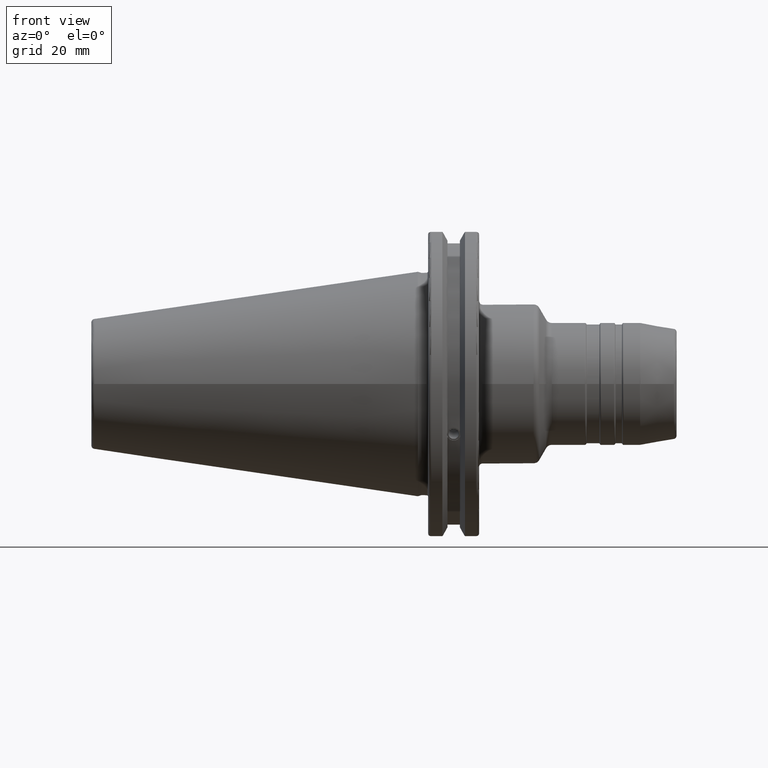
[diagram: clean part render]
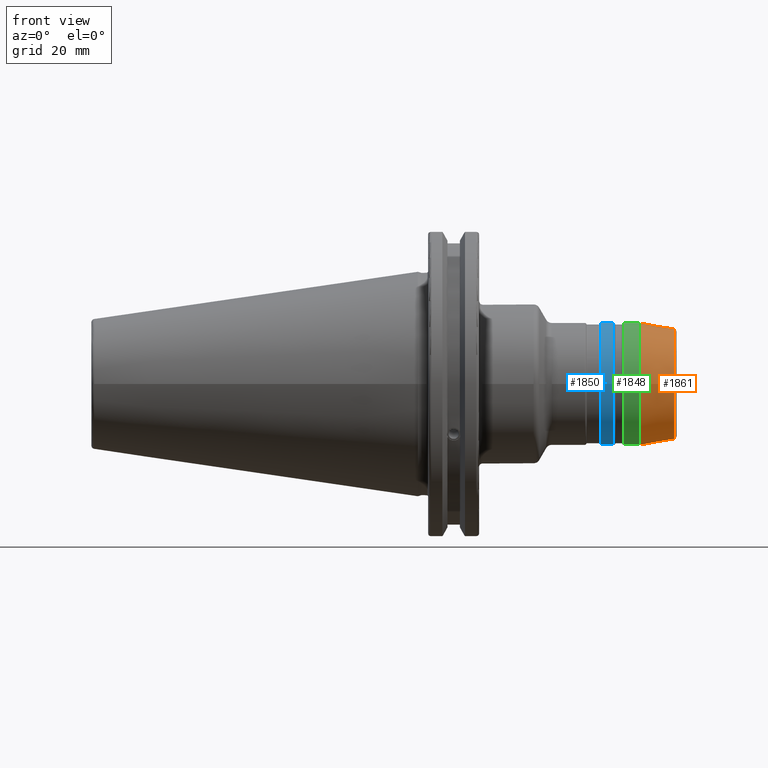
[diagram: same view with three faces highlighted in distinct colors, each labeled with its STEP entity id]
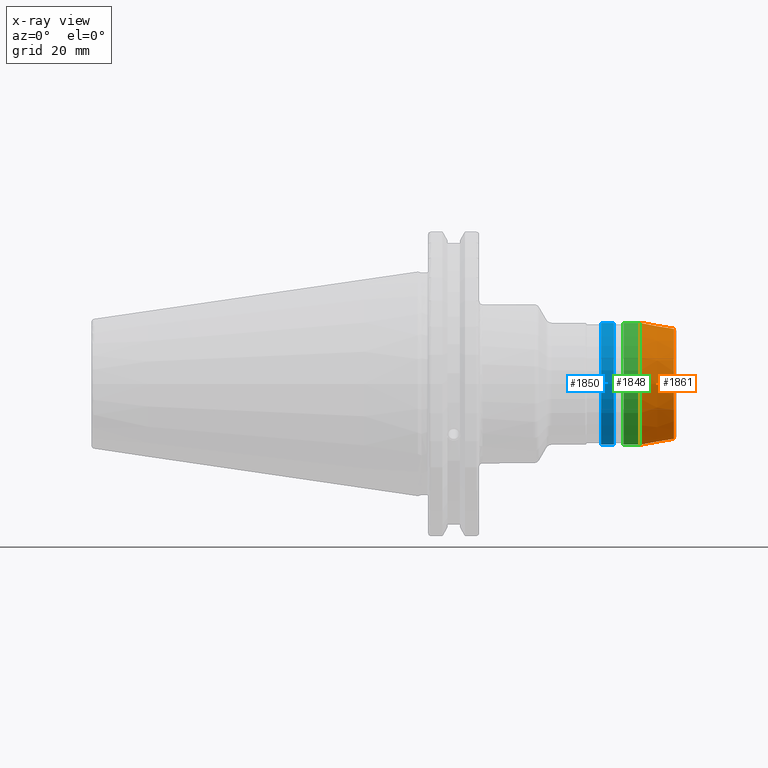
[diagram: x-ray of the same camera — body ghosted, the three highlighted faces saturated]
A machine part, front view with three faces highlighted in distinct colors.
The next image is the same camera in x-ray (body ghosted, the three faces saturated) — at least one of them is partly hidden behind the body in this view.
Their STEP definitions:

[orange] entity #1861 — the highlighted conical surface has half-angle 10 deg.
#154=CONICAL_SURFACE('',#2060,18.,0.174532925199432);
#195=FACE_OUTER_BOUND('',#306,.T.);
#306=EDGE_LOOP('',(#1397,#1398,#1399,#1400,#1401,#1402));
#428=LINE('',#3056,#532);
#532=VECTOR('',#2428,18.);
#675=CIRCLE('',#2057,18.9848077530122);
#676=CIRCLE('',#2058,18.9848077530122);
#678=CIRCLE('',#2061,17.1457081218349);
#679=CIRCLE('',#2062,17.1457081218349);
#807=VERTEX_POINT('',#3047);
#808=VERTEX_POINT('',#3048);
#809=VERTEX_POINT('',#3053);
#810=VERTEX_POINT('',#3054);
#1027=EDGE_CURVE('',#807,#808,#675,.T.);
#1028=EDGE_CURVE('',#808,#807,#676,.T.);
#1030=EDGE_CURVE('',#809,#810,#678,.T.);
#1031=EDGE_CURVE('',#809,#808,#428,.T.);
#1032=EDGE_CURVE('',#810,#809,#679,.T.);
#1397=ORIENTED_EDGE('',*,*,#1030,.F.);
#1398=ORIENTED_EDGE('',*,*,#1031,.T.);
#1399=ORIENTED_EDGE('',*,*,#1027,.F.);
#1400=ORIENTED_EDGE('',*,*,#1028,.F.);
#1401=ORIENTED_EDGE('',*,*,#1031,.F.);
#1402=ORIENTED_EDGE('',*,*,#1032,.F.);
#1861=ADVANCED_FACE('',(#195),#154,.T.);
#2057=AXIS2_PLACEMENT_3D('',#3049,#2418,#2419);
#2058=AXIS2_PLACEMENT_3D('',#3050,#2420,#2421);
#2060=AXIS2_PLACEMENT_3D('',#3052,#2424,#2425);
#2061=AXIS2_PLACEMENT_3D('',#3055,#2426,#2427);
#2062=AXIS2_PLACEMENT_3D('',#3057,#2429,#2430);
#2418=DIRECTION('center_axis',(-1.,0.,0.));
#2419=DIRECTION('ref_axis',(0.,-1.,3.06161699786838E-17));
#2420=DIRECTION('center_axis',(-1.,0.,0.));
#2421=DIRECTION('ref_axis',(0.,-1.,3.06161699786838E-17));
#2424=DIRECTION('center_axis',(-1.,0.,0.));
#2425=DIRECTION('ref_axis',(0.,1.,0.));
#2426=DIRECTION('center_axis',(1.,0.,0.));
#2427=DIRECTION('ref_axis',(0.,-1.,3.06161699786838E-17));
#2428=DIRECTION('',(-0.984807753012208,-0.17364817766693,-2.12657684957577E-17));
#2429=DIRECTION('center_axis',(1.,0.,0.));
#2430=DIRECTION('ref_axis',(0.,-1.,3.06161699786838E-17));
#3047=CARTESIAN_POINT('',(69.2435958749056,-2.32496840471543E-15,18.9848077530122));
#3048=CARTESIAN_POINT('',(69.2435958749056,-18.9848077530122,-2.32496840471543E-15));
#3049=CARTESIAN_POINT('Origin',(69.2435958749056,0.,-2.90621050589428E-15));
#3050=CARTESIAN_POINT('Origin',(69.2435958749056,0.,-2.90621050589428E-15));
#3052=CARTESIAN_POINT('Origin',(74.8287181803823,0.,0.));
#3053=CARTESIAN_POINT('',(79.6736481776669,-17.1457081218349,-2.09974365705199E-15));
#3054=CARTESIAN_POINT('',(79.6736481776669,-2.09974365705199E-15,17.1457081218349));
#3055=CARTESIAN_POINT('Origin',(79.6736481776669,0.,-2.62467957131499E-15));
#3056=CARTESIAN_POINT('',(74.8287181803823,-18.,-2.20436423846524E-15));
#3057=CARTESIAN_POINT('Origin',(79.6736481776669,0.,-2.62467957131499E-15));

[blue] entity #1850 — the highlighted cylindrical surface (bore or boss wall) has radius 19 mm, axis along (1, 0, 0).
#184=FACE_OUTER_BOUND('',#294,.T.);
#294=EDGE_LOOP('',(#1325,#1326,#1327,#1328,#1329,#1330));
#414=LINE('',#2975,#518);
#518=VECTOR('',#2340,19.);
#651=CIRCLE('',#2022,19.);
#652=CIRCLE('',#2023,19.);
#653=CIRCLE('',#2025,19.);
#654=CIRCLE('',#2026,19.);
#778=VERTEX_POINT('',#2968);
#779=VERTEX_POINT('',#2970);
#780=VERTEX_POINT('',#2974);
#781=VERTEX_POINT('',#2976);
#989=EDGE_CURVE('',#778,#779,#651,.T.);
#990=EDGE_CURVE('',#779,#778,#652,.T.);
#991=EDGE_CURVE('',#779,#780,#414,.T.);
#992=EDGE_CURVE('',#781,#780,#653,.T.);
#993=EDGE_CURVE('',#780,#781,#654,.T.);
#1325=ORIENTED_EDGE('',*,*,#990,.F.);
#1326=ORIENTED_EDGE('',*,*,#991,.T.);
#1327=ORIENTED_EDGE('',*,*,#992,.F.);
#1328=ORIENTED_EDGE('',*,*,#993,.F.);
#1329=ORIENTED_EDGE('',*,*,#991,.F.);
#1330=ORIENTED_EDGE('',*,*,#989,.F.);
#1805=CYLINDRICAL_SURFACE('',#2024,19.);
#1850=ADVANCED_FACE('',(#184),#1805,.T.);
#2022=AXIS2_PLACEMENT_3D('',#2971,#2334,#2335);
#2023=AXIS2_PLACEMENT_3D('',#2972,#2336,#2337);
#2024=AXIS2_PLACEMENT_3D('',#2973,#2338,#2339);
#2025=AXIS2_PLACEMENT_3D('',#2977,#2341,#2342);
#2026=AXIS2_PLACEMENT_3D('',#2978,#2343,#2344);
#2334=DIRECTION('center_axis',(1.,0.,0.));
#2335=DIRECTION('ref_axis',(0.,-1.,1.83697019872103E-16));
#2336=DIRECTION('center_axis',(1.,0.,0.));
#2337=DIRECTION('ref_axis',(0.,-1.,1.83697019872103E-16));
#2338=DIRECTION('center_axis',(1.,0.,0.));
#2339=DIRECTION('ref_axis',(0.,1.,0.));
#2340=DIRECTION('',(-1.,0.,0.));
#2341=DIRECTION('center_axis',(-1.,0.,0.));
#2342=DIRECTION('ref_axis',(0.,-1.,1.83697019872103E-16));
#2343=DIRECTION('center_axis',(-1.,0.,0.));
#2344=DIRECTION('ref_axis',(0.,-1.,1.83697019872103E-16));
#2968=CARTESIAN_POINT('',(60.9803847577293,-2.32682891837997E-15,19.));
#2970=CARTESIAN_POINT('',(60.9803847577293,-19.,-2.32682891837997E-15));
#2971=CARTESIAN_POINT('Origin',(60.9803847577293,0.,0.));
#2972=CARTESIAN_POINT('Origin',(60.9803847577293,0.,0.));
#2973=CARTESIAN_POINT('Origin',(59.,0.,0.));
#2974=CARTESIAN_POINT('',(57.0196152422707,-19.,-2.32682891837997E-15));
#2975=CARTESIAN_POINT('',(59.,-19.,-2.32682891837997E-15));
#2976=CARTESIAN_POINT('',(57.0196152422707,-2.32682891837997E-15,19.));
#2977=CARTESIAN_POINT('Origin',(57.0196152422707,0.,0.));
#2978=CARTESIAN_POINT('Origin',(57.0196152422707,0.,0.));

[green] entity #1848 — the highlighted cylindrical surface (bore or boss wall) has radius 19 mm, axis along (1, 0, 0).
#182=FACE_OUTER_BOUND('',#292,.T.);
#292=EDGE_LOOP('',(#1313,#1314,#1315,#1316,#1317,#1318));
#413=LINE('',#2965,#517);
#517=VECTOR('',#2327,19.);
#645=CIRCLE('',#2014,19.);
#646=CIRCLE('',#2015,19.);
#648=CIRCLE('',#2018,19.);
#649=CIRCLE('',#2019,19.);
#774=VERTEX_POINT('',#2956);
#775=VERTEX_POINT('',#2957);
#776=VERTEX_POINT('',#2962);
#777=VERTEX_POINT('',#2963);
#982=EDGE_CURVE('',#774,#775,#645,.T.);
#983=EDGE_CURVE('',#775,#774,#646,.T.);
#985=EDGE_CURVE('',#776,#777,#648,.T.);
#986=EDGE_CURVE('',#776,#775,#413,.T.);
#987=EDGE_CURVE('',#777,#776,#649,.T.);
#1313=ORIENTED_EDGE('',*,*,#985,.F.);
#1314=ORIENTED_EDGE('',*,*,#986,.T.);
#1315=ORIENTED_EDGE('',*,*,#982,.F.);
#1316=ORIENTED_EDGE('',*,*,#983,.F.);
#1317=ORIENTED_EDGE('',*,*,#986,.F.);
#1318=ORIENTED_EDGE('',*,*,#987,.F.);
#1804=CYLINDRICAL_SURFACE('',#2017,19.);
#1848=ADVANCED_FACE('',(#182),#1804,.T.);
#2014=AXIS2_PLACEMENT_3D('',#2958,#2317,#2318);
#2015=AXIS2_PLACEMENT_3D('',#2959,#2319,#2320);
#2017=AXIS2_PLACEMENT_3D('',#2961,#2323,#2324);
#2018=AXIS2_PLACEMENT_3D('',#2964,#2325,#2326);
#2019=AXIS2_PLACEMENT_3D('',#2966,#2328,#2329);
#2317=DIRECTION('center_axis',(-1.,0.,0.));
#2318=DIRECTION('ref_axis',(0.,-1.,1.83697019872103E-16));
#2319=DIRECTION('center_axis',(-1.,0.,0.));
#2320=DIRECTION('ref_axis',(0.,-1.,1.83697019872103E-16));
#2323=DIRECTION('center_axis',(1.,0.,0.));
#2324=DIRECTION('ref_axis',(0.,1.,0.));
#2325=DIRECTION('center_axis',(1.,0.,0.));
#2326=DIRECTION('ref_axis',(0.,-1.,1.83697019872103E-16));
#2327=DIRECTION('',(-1.,0.,0.));
#2328=DIRECTION('center_axis',(1.,0.,0.));
#2329=DIRECTION('ref_axis',(0.,-1.,1.83697019872103E-16));
#2956=CARTESIAN_POINT('',(64.0196152422707,-2.32682891837997E-15,19.));
#2957=CARTESIAN_POINT('',(64.0196152422707,-19.,-2.32682891837997E-15));
#2958=CARTESIAN_POINT('Origin',(64.0196152422707,0.,0.));
#2959=CARTESIAN_POINT('Origin',(64.0196152422707,0.,0.));
#2961=CARTESIAN_POINT('Origin',(66.4730557476797,0.,0.));
#2962=CARTESIAN_POINT('',(69.0699476972386,-19.,-2.32682891837997E-15));
#2963=CARTESIAN_POINT('',(69.0699476972386,-2.32682891837997E-15,19.));
#2964=CARTESIAN_POINT('Origin',(69.0699476972386,0.,0.));
#2965=CARTESIAN_POINT('',(66.4730557476797,-19.,-2.32682891837997E-15));
#2966=CARTESIAN_POINT('Origin',(69.0699476972386,0.,0.));